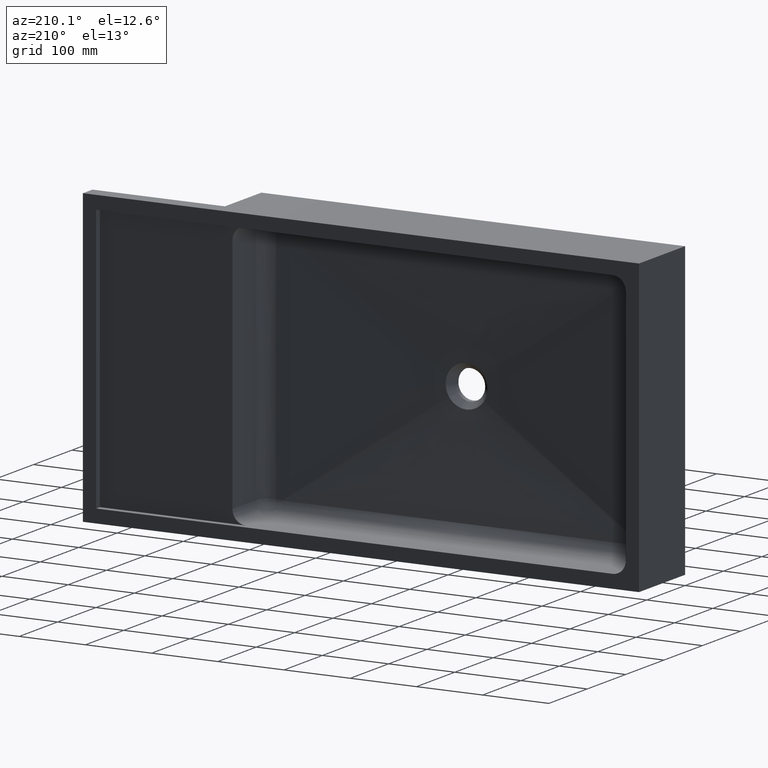
[diagram: clean part render]
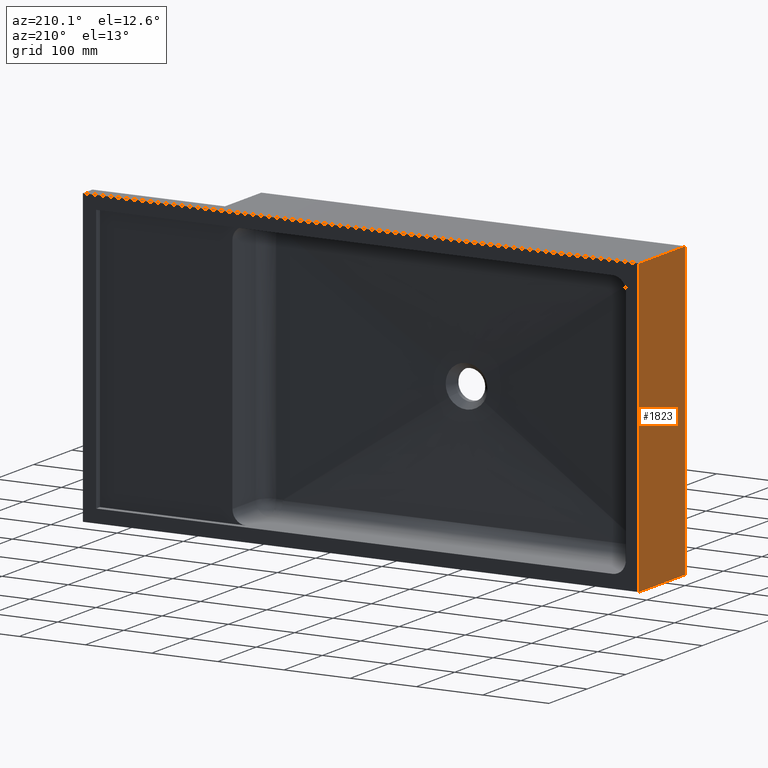
[diagram: same view with one face highlighted and labeled with its STEP entity id]
A machine part, auxiliary view. The second image highlights one B-rep face of the part: STEP entity #1823.
In plain terms, the highlighted planar face has unit normal (1, -0, 0).
Its self-contained STEP definition (entity closure, byte-faithful):
#3 = CARTESIAN_POINT ( 'NONE',  ( 0.0000000000000000000, 120.0000000000000000, 0.0000000000000000000 ) ) ;
#25 = CARTESIAN_POINT ( 'NONE',  ( 0.0000000000000000000, 120.0000000000000000, 0.0000000000000000000 ) ) ;
#177 = CARTESIAN_POINT ( 'NONE',  ( 0.0000000000000000000, 120.0000000000000000, 0.0000000000000000000 ) ) ;
#209 = DIRECTION ( 'NONE',  ( -0.0000000000000000000, -1.000000000000000000, -0.0000000000000000000 ) ) ;
#244 = DIRECTION ( 'NONE',  ( 0.0000000000000000000, 0.0000000000000000000, -1.000000000000000000 ) ) ;
#301 = VERTEX_POINT ( 'NONE', #389 ) ;
#303 = EDGE_CURVE ( 'NONE', #301, #1153, #1135, .T. ) ;
#331 = CARTESIAN_POINT ( 'NONE',  ( 0.0000000000000000000, 0.0000000000000000000, 0.0000000000000000000 ) ) ;
#360 = ORIENTED_EDGE ( 'NONE', *, *, #594, .F. ) ;
#389 = CARTESIAN_POINT ( 'NONE',  ( 0.0000000000000000000, 120.0000000000000000, -440.0000000000000568 ) ) ;
#425 = PLANE ( 'NONE',  #1097 ) ;
#507 = EDGE_CURVE ( 'NONE', #301, #1207, #1682, .T. ) ;
#594 = EDGE_CURVE ( 'NONE', #1207, #1590, #719, .T. ) ;
#719 = LINE ( 'NONE', #177, #1160 ) ;
#760 = DIRECTION ( 'NONE',  ( -0.0000000000000000000, -0.0000000000000000000, 1.000000000000000000 ) ) ;
#826 = ORIENTED_EDGE ( 'NONE', *, *, #507, .F. ) ;
#837 = ORIENTED_EDGE ( 'NONE', *, *, #1698, .T. ) ;
#919 = DIRECTION ( 'NONE',  ( -0.0000000000000000000, -1.000000000000000000, -0.0000000000000000000 ) ) ;
#1044 = ORIENTED_EDGE ( 'NONE', *, *, #303, .T. ) ;
#1080 = DIRECTION ( 'NONE',  ( -0.0000000000000000000, -0.0000000000000000000, 1.000000000000000000 ) ) ;
#1097 = AXIS2_PLACEMENT_3D ( 'NONE', #1168, #1911, #244 ) ;
#1135 = LINE ( 'NONE', #1877, #1221 ) ;
#1153 = VERTEX_POINT ( 'NONE', #1264 ) ;
#1160 = VECTOR ( 'NONE', #919, 1000.000000000000000 ) ;
#1168 = CARTESIAN_POINT ( 'NONE',  ( 0.0000000000000000000, 120.0000000000000000, 0.0000000000000000000 ) ) ;
#1207 = VERTEX_POINT ( 'NONE', #3 ) ;
#1221 = VECTOR ( 'NONE', #209, 1000.000000000000000 ) ;
#1264 = CARTESIAN_POINT ( 'NONE',  ( 0.0000000000000000000, 0.0000000000000000000, -440.0000000000000568 ) ) ;
#1526 = FACE_OUTER_BOUND ( 'NONE', #2060, .T. ) ;
#1590 = VERTEX_POINT ( 'NONE', #2074 ) ;
#1682 = LINE ( 'NONE', #25, #1767 ) ;
#1698 = EDGE_CURVE ( 'NONE', #1153, #1590, #2006, .T. ) ;
#1767 = VECTOR ( 'NONE', #760, 1000.000000000000000 ) ;
#1823 = ADVANCED_FACE ( 'NONE', ( #1526 ), #425, .F. ) ;
#1877 = CARTESIAN_POINT ( 'NONE',  ( 0.0000000000000000000, 120.0000000000000000, -440.0000000000000568 ) ) ;
#1911 = DIRECTION ( 'NONE',  ( 1.000000000000000000, -0.0000000000000000000, 0.0000000000000000000 ) ) ;
#2006 = LINE ( 'NONE', #331, #2127 ) ;
#2060 = EDGE_LOOP ( 'NONE', ( #837, #360, #826, #1044 ) ) ;
#2074 = CARTESIAN_POINT ( 'NONE',  ( 0.0000000000000000000, 0.0000000000000000000, 0.0000000000000000000 ) ) ;
#2127 = VECTOR ( 'NONE', #1080, 1000.000000000000000 ) ;